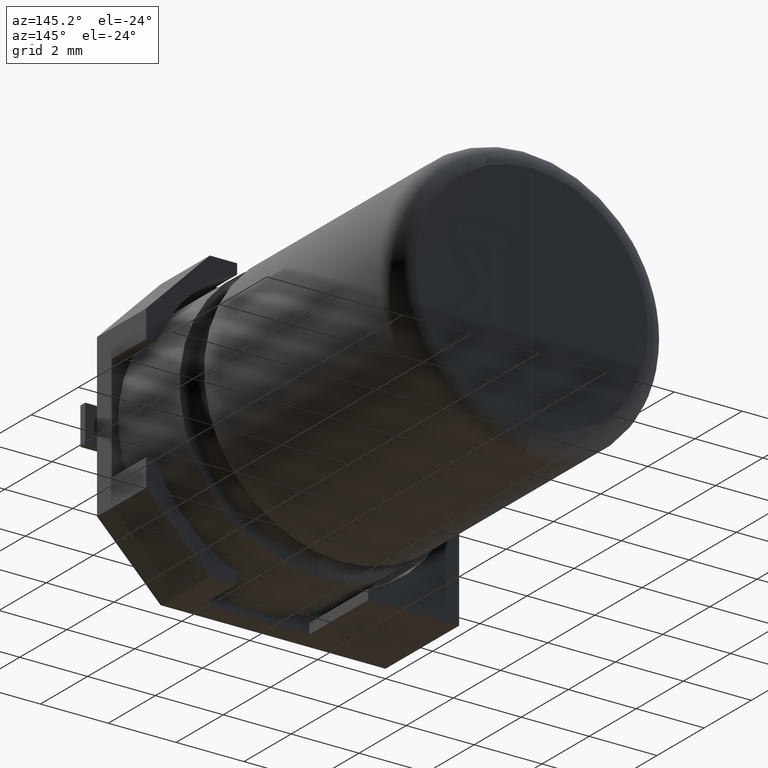
[diagram: clean part render]
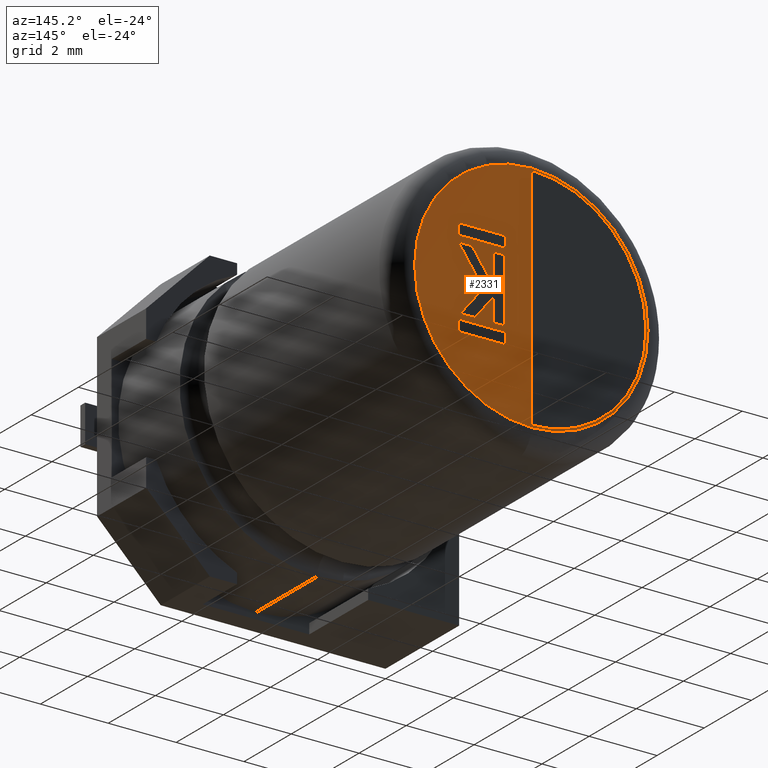
[diagram: same view with one face highlighted and labeled with its STEP entity id]
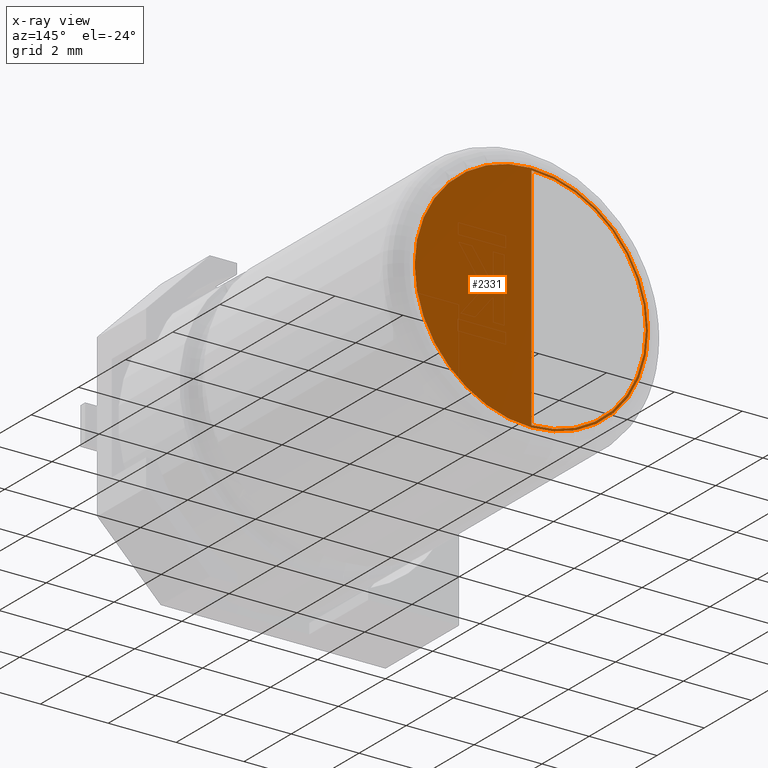
[diagram: x-ray of the same camera — body ghosted, the highlighted face saturated]
A machine part, auxiliary view. The second image highlights one B-rep face of the part: STEP entity #2331.
The next image is the same camera in x-ray: the body ghosted, the highlighted face saturated — about 0% of this face is hidden behind the body in this view.
In plain terms, the highlighted planar face has unit normal (0, 1, 0).
Its self-contained STEP definition (entity closure, byte-faithful):
#25 = ORIENTED_EDGE ( 'NONE', *, *, #1116, .F. ) ;
#87 = CIRCLE ( 'NONE', #843, 3.437574999999998493 ) ;
#122 = DIRECTION ( 'NONE',  ( 0.000000000000000000, 1.000000000000000000, 0.000000000000000000 ) ) ;
#136 = CARTESIAN_POINT ( 'NONE',  ( 4.250000000000000000, 12.30000000000000249, -7.624967500000001230 ) ) ;
#287 = CARTESIAN_POINT ( 'NONE',  ( 4.250000000000000000, 12.30000000000000249, -0.8124250000000032834 ) ) ;
#332 = CARTESIAN_POINT ( 'NONE',  ( 4.250000000000000000, 12.30000000000000249, -4.250000000000001776 ) ) ;
#422 = DIRECTION ( 'NONE',  ( -0.000000000000000000, -0.000000000000000000, -1.000000000000000000 ) ) ;
#617 = FACE_BOUND ( 'NONE', #1365, .T. ) ;
#666 = EDGE_CURVE ( 'NONE', #2922, #2593, #3275, .T. ) ;
#669 = CARTESIAN_POINT ( 'NONE',  ( 4.250000000000000000, 12.30000000000000249, -0.8750325000000027664 ) ) ;
#700 = AXIS2_PLACEMENT_3D ( 'NONE', #332, #122, #2396 ) ;
#831 = VECTOR ( 'NONE', #422, 1000.000000000000000 ) ;
#843 = AXIS2_PLACEMENT_3D ( 'NONE', #3247, #1170, #2692 ) ;
#856 = DIRECTION ( 'NONE',  ( 0.000000000000000000, 0.000000000000000000, 1.000000000000000000 ) ) ;
#880 = CARTESIAN_POINT ( 'NONE',  ( 4.250000000000000000, 12.30000000000000249, -7.687575000000001602 ) ) ;
#928 = CARTESIAN_POINT ( 'NONE',  ( 4.250000000000000000, 12.30000000000000249, -4.250000000000001776 ) ) ;
#1104 = CARTESIAN_POINT ( 'NONE',  ( 4.250000000000000000, 12.30000000000000249, -7.624967500000001230 ) ) ;
#1116 = EDGE_CURVE ( 'NONE', #2593, #2922, #2481, .T. ) ;
#1152 = FACE_OUTER_BOUND ( 'NONE', #1953, .T. ) ;
#1164 = VERTEX_POINT ( 'NONE', #880 ) ;
#1170 = DIRECTION ( 'NONE',  ( 0.000000000000000000, 1.000000000000000000, 0.000000000000000000 ) ) ;
#1226 = AXIS2_PLACEMENT_3D ( 'NONE', #928, #2750, #856 ) ;
#1365 = EDGE_LOOP ( 'NONE', ( #1573, #25 ) ) ;
#1573 = ORIENTED_EDGE ( 'NONE', *, *, #666, .F. ) ;
#1624 = CIRCLE ( 'NONE', #3408, 3.437574999999998493 ) ;
#1753 = DIRECTION ( 'NONE',  ( 0.000000000000000000, 0.000000000000000000, 1.000000000000000000 ) ) ;
#1812 = CARTESIAN_POINT ( 'NONE',  ( 4.250000000000000000, 12.30000000000000249, -4.250000000000001776 ) ) ;
#1915 = PLANE ( 'NONE',  #700 ) ;
#1953 = EDGE_LOOP ( 'NONE', ( #3013, #3371 ) ) ;
#2331 = ADVANCED_FACE ( 'NONE', ( #1152, #617 ), #1915, .T. ) ;
#2337 = EDGE_CURVE ( 'NONE', #1164, #2706, #87, .T. ) ;
#2396 = DIRECTION ( 'NONE',  ( 0.000000000000000000, -0.000000000000000000, 1.000000000000000000 ) ) ;
#2481 = LINE ( 'NONE', #136, #831 ) ;
#2593 = VERTEX_POINT ( 'NONE', #669 ) ;
#2692 = DIRECTION ( 'NONE',  ( 0.000000000000000000, 0.000000000000000000, 1.000000000000000000 ) ) ;
#2706 = VERTEX_POINT ( 'NONE', #287 ) ;
#2750 = DIRECTION ( 'NONE',  ( 0.000000000000000000, 1.000000000000000000, 0.000000000000000000 ) ) ;
#2922 = VERTEX_POINT ( 'NONE', #1104 ) ;
#3013 = ORIENTED_EDGE ( 'NONE', *, *, #3178, .T. ) ;
#3178 = EDGE_CURVE ( 'NONE', #2706, #1164, #1624, .T. ) ;
#3247 = CARTESIAN_POINT ( 'NONE',  ( 4.250000000000000000, 12.30000000000000249, -4.250000000000001776 ) ) ;
#3275 = CIRCLE ( 'NONE', #1226, 3.374967499999999454 ) ;
#3371 = ORIENTED_EDGE ( 'NONE', *, *, #2337, .T. ) ;
#3408 = AXIS2_PLACEMENT_3D ( 'NONE', #1812, #3419, #1753 ) ;
#3419 = DIRECTION ( 'NONE',  ( 0.000000000000000000, 1.000000000000000000, 0.000000000000000000 ) ) ;